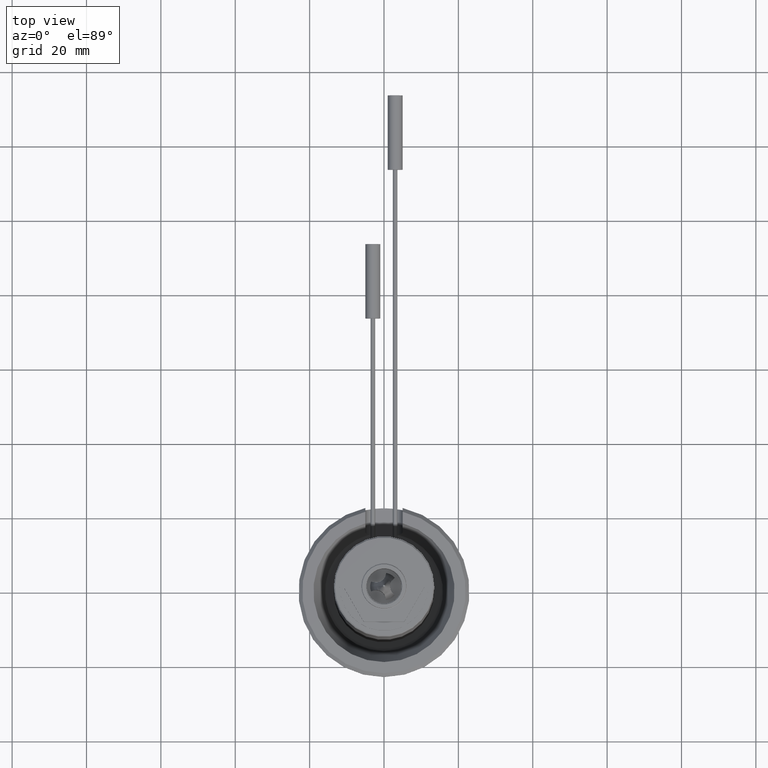
[diagram: clean part render]
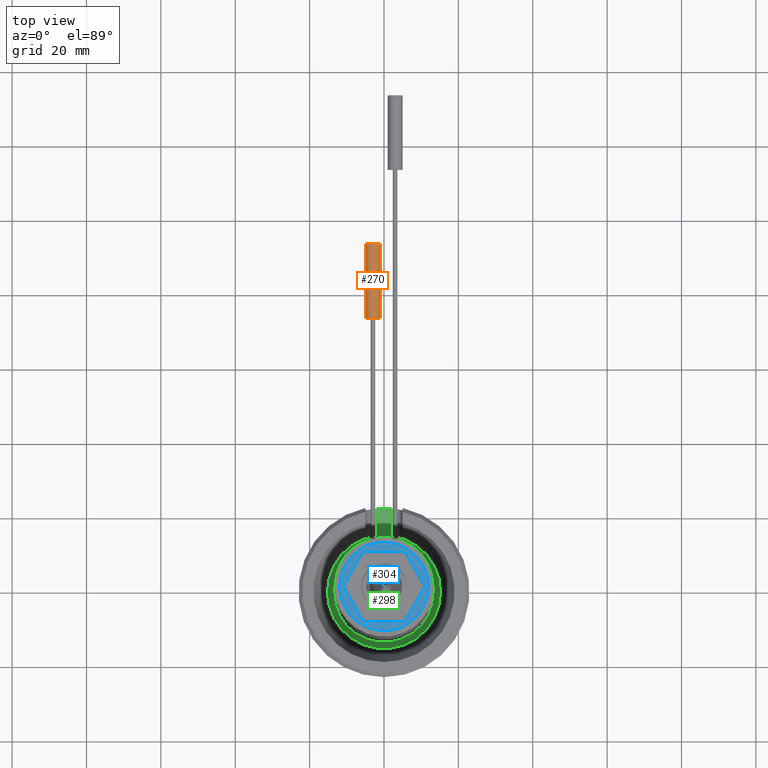
[diagram: same view with three faces highlighted in distinct colors, each labeled with its STEP entity id]
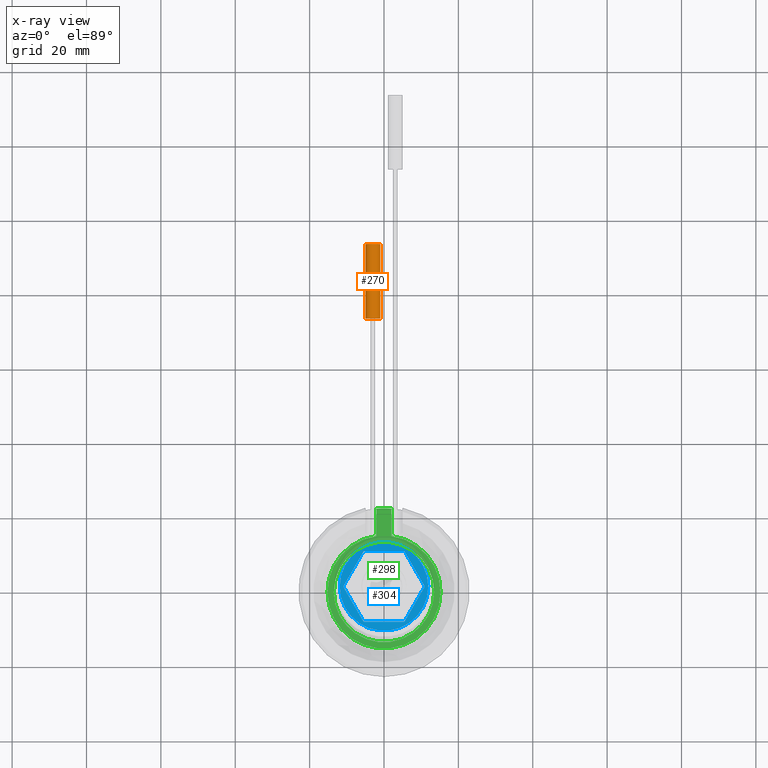
[diagram: x-ray of the same camera — body ghosted, the three highlighted faces saturated]
A machine part, top view with three faces highlighted in distinct colors.
The next image is the same camera in x-ray (body ghosted, the three faces saturated) — at least one of them is partly hidden behind the body in this view.
Their STEP definitions:

[orange] entity #270 — the highlighted cylindrical surface (bore or boss wall) has radius 2 mm, axis along (0, -1, 0).
#270=ADVANCED_FACE('',(#367,#368),#343,.T.);
#343=CYLINDRICAL_SURFACE('',#1116,2.);
#367=FACE_BOUND('',#431,.T.);
#368=FACE_BOUND('',#432,.T.);
#431=EDGE_LOOP('',(#538));
#432=EDGE_LOOP('',(#539));
#538=ORIENTED_EDGE('',*,*,#896,.F.);
#539=ORIENTED_EDGE('',*,*,#897,.T.);
#798=VERTEX_POINT('',#1588);
#799=VERTEX_POINT('',#1590);
#896=EDGE_CURVE('',#798,#798,#1027,.T.);
#897=EDGE_CURVE('',#799,#799,#1028,.T.);
#1027=CIRCLE('',#1114,2.);
#1028=CIRCLE('',#1115,2.);
#1114=AXIS2_PLACEMENT_3D('',#1587,#1262,#1263);
#1115=AXIS2_PLACEMENT_3D('',#1589,#1264,#1265);
#1116=AXIS2_PLACEMENT_3D('',#1591,#1266,#1267);
#1262=DIRECTION('',(0.,1.,0.));
#1263=DIRECTION('',(1.,0.,0.));
#1264=DIRECTION('',(0.,1.,0.));
#1265=DIRECTION('',(1.,0.,0.));
#1266=DIRECTION('',(0.,-1.,0.));
#1267=DIRECTION('',(0.,0.,-1.));
#1587=CARTESIAN_POINT('',(-3.,93.5,18.5));
#1588=CARTESIAN_POINT('',(-0.999999999999999,93.5,18.5));
#1589=CARTESIAN_POINT('',(-3.,73.5,18.5));
#1590=CARTESIAN_POINT('',(-0.999999999999999,73.5,18.5));
#1591=CARTESIAN_POINT('',(-3.,93.5,18.5));

[blue] entity #304 — the highlighted planar face has unit normal (0, 0, -1).
#63=LINE('',#1932,#107);
#64=LINE('',#1933,#108);
#65=LINE('',#1934,#109);
#66=LINE('',#1935,#110);
#67=LINE('',#1936,#111);
#68=LINE('',#1937,#112);
#107=VECTOR('',#1470,1.);
#108=VECTOR('',#1471,1.);
#109=VECTOR('',#1472,1.);
#110=VECTOR('',#1473,1.);
#111=VECTOR('',#1474,1.);
#112=VECTOR('',#1475,1.);
#203=PLANE('',#1203);
#304=ADVANCED_FACE('',(#405,#406),#203,.F.);
#405=FACE_BOUND('',#485,.T.);
#406=FACE_BOUND('',#486,.T.);
#485=EDGE_LOOP('',(#662,#663,#664,#665,#666,#667,#668,#669,#670,#671,#672,
#673));
#486=EDGE_LOOP('',(#674));
#662=ORIENTED_EDGE('',*,*,#928,.F.);
#663=ORIENTED_EDGE('',*,*,#993,.T.);
#664=ORIENTED_EDGE('',*,*,#936,.F.);
#665=ORIENTED_EDGE('',*,*,#994,.T.);
#666=ORIENTED_EDGE('',*,*,#933,.F.);
#667=ORIENTED_EDGE('',*,*,#995,.T.);
#668=ORIENTED_EDGE('',*,*,#930,.F.);
#669=ORIENTED_EDGE('',*,*,#996,.T.);
#670=ORIENTED_EDGE('',*,*,#924,.F.);
#671=ORIENTED_EDGE('',*,*,#997,.T.);
#672=ORIENTED_EDGE('',*,*,#922,.F.);
#673=ORIENTED_EDGE('',*,*,#998,.T.);
#674=ORIENTED_EDGE('',*,*,#999,.T.);
#822=VERTEX_POINT('',#1695);
#823=VERTEX_POINT('',#1697);
#824=VERTEX_POINT('',#1701);
#825=VERTEX_POINT('',#1703);
#826=VERTEX_POINT('',#1707);
#827=VERTEX_POINT('',#1709);
#828=VERTEX_POINT('',#1713);
#829=VERTEX_POINT('',#1715);
#830=VERTEX_POINT('',#1719);
#831=VERTEX_POINT('',#1721);
#832=VERTEX_POINT('',#1725);
#833=VERTEX_POINT('',#1727);
#880=VERTEX_POINT('',#1939);
#922=EDGE_CURVE('',#823,#822,#1042,.T.);
#924=EDGE_CURVE('',#824,#825,#1043,.T.);
#928=EDGE_CURVE('',#827,#826,#1044,.T.);
#930=EDGE_CURVE('',#828,#829,#1045,.T.);
#933=EDGE_CURVE('',#830,#831,#1046,.T.);
#936=EDGE_CURVE('',#832,#833,#1047,.T.);
#993=EDGE_CURVE('',#827,#833,#63,.T.);
#994=EDGE_CURVE('',#832,#831,#64,.T.);
#995=EDGE_CURVE('',#830,#829,#65,.T.);
#996=EDGE_CURVE('',#828,#825,#66,.T.);
#997=EDGE_CURVE('',#824,#822,#67,.T.);
#998=EDGE_CURVE('',#823,#826,#68,.T.);
#999=EDGE_CURVE('',#880,#880,#1081,.T.);
#1042=CIRCLE('',#1137,10.9);
#1043=CIRCLE('',#1139,10.9);
#1044=CIRCLE('',#1141,10.9);
#1045=CIRCLE('',#1143,10.9);
#1046=CIRCLE('',#1145,10.9);
#1047=CIRCLE('',#1147,10.9);
#1081=CIRCLE('',#1202,11.9);
#1137=AXIS2_PLACEMENT_3D('',#1698,#1316,#1317);
#1139=AXIS2_PLACEMENT_3D('',#1702,#1321,#1322);
#1141=AXIS2_PLACEMENT_3D('',#1710,#1328,#1329);
#1143=AXIS2_PLACEMENT_3D('',#1714,#1333,#1334);
#1145=AXIS2_PLACEMENT_3D('',#1720,#1339,#1340);
#1147=AXIS2_PLACEMENT_3D('',#1726,#1345,#1346);
#1202=AXIS2_PLACEMENT_3D('',#1938,#1476,#1477);
#1203=AXIS2_PLACEMENT_3D('',#1940,#1478,#1479);
#1316=DIRECTION('',(0.,0.,1.));
#1317=DIRECTION('',(1.,0.,0.));
#1321=DIRECTION('',(0.,0.,1.));
#1322=DIRECTION('',(1.,0.,0.));
#1328=DIRECTION('',(0.,0.,1.));
#1329=DIRECTION('',(1.,0.,0.));
#1333=DIRECTION('',(0.,0.,1.));
#1334=DIRECTION('',(1.,0.,0.));
#1339=DIRECTION('',(0.,0.,1.));
#1340=DIRECTION('',(1.,0.,0.));
#1345=DIRECTION('',(0.,0.,1.));
#1346=DIRECTION('',(1.,0.,0.));
#1470=DIRECTION('',(1.,0.,0.));
#1471=DIRECTION('',(0.500000000000001,-0.866025403784438,0.));
#1472=DIRECTION('',(-0.499999999999999,-0.866025403784439,0.));
#1473=DIRECTION('',(-1.,-2.27221380597914E-15,0.));
#1474=DIRECTION('',(-0.500000000000003,0.866025403784437,0.));
#1475=DIRECTION('',(0.499999999999996,0.866025403784441,0.));
#1476=DIRECTION('',(0.,0.,1.));
#1477=DIRECTION('',(1.,0.,0.));
#1478=DIRECTION('',(0.,0.,-1.));
#1479=DIRECTION('',(-1.,0.,0.));
#1695=CARTESIAN_POINT('',(-10.8993191791296,-0.121825413837578,100.5));
#1697=CARTESIAN_POINT('',(-10.8993191791296,0.121825413837501,100.5));
#1698=CARTESIAN_POINT('',(0.,0.,100.5));
#1701=CARTESIAN_POINT('',(-5.55516349277467,-9.37817458616247,100.5));
#1702=CARTESIAN_POINT('',(0.,0.,100.5));
#1703=CARTESIAN_POINT('',(-5.34415568635493,-9.50000000000001,100.5));
#1707=CARTESIAN_POINT('',(-5.55516349277473,9.37817458616243,100.5));
#1709=CARTESIAN_POINT('',(-5.34415568635495,9.5,100.5));
#1710=CARTESIAN_POINT('',(0.,0.,100.5));
#1713=CARTESIAN_POINT('',(5.34415568635498,-9.49999999999999,100.5));
#1714=CARTESIAN_POINT('',(0.,0.,100.5));
#1715=CARTESIAN_POINT('',(5.5551634927747,-9.37817458616245,100.5));
#1719=CARTESIAN_POINT('',(10.8993191791296,-0.121825413837535,100.5));
#1720=CARTESIAN_POINT('',(0.,0.,100.5));
#1721=CARTESIAN_POINT('',(10.8993191791296,0.121825413837552,100.5));
#1725=CARTESIAN_POINT('',(5.55516349277469,9.37817458616246,100.5));
#1726=CARTESIAN_POINT('',(0.,0.,100.5));
#1727=CARTESIAN_POINT('',(5.34415568635496,9.5,100.5));
#1932=CARTESIAN_POINT('',(-5.34415568635496,9.5,100.5));
#1933=CARTESIAN_POINT('',(5.55516349277468,9.37817458616246,100.5));
#1934=CARTESIAN_POINT('',(10.8993191791296,-0.121825413837527,100.5));
#1935=CARTESIAN_POINT('',(5.34415568635498,-9.49999999999999,100.5));
#1936=CARTESIAN_POINT('',(-5.55516349277466,-9.37817458616247,100.5));
#1937=CARTESIAN_POINT('',(-10.8993191791296,0.121825413837499,100.5));
#1938=CARTESIAN_POINT('',(0.,0.,100.5));
#1939=CARTESIAN_POINT('',(11.9,0.,100.5));
#1940=CARTESIAN_POINT('',(-11.9,0.,100.5));

[green] entity #298 — the highlighted planar face has unit normal (0, 0, 1).
#61=LINE('',#1903,#105);
#62=LINE('',#1904,#106);
#105=VECTOR('',#1432,1.);
#106=VECTOR('',#1433,1.);
#200=PLANE('',#1185);
#298=ADVANCED_FACE('',(#393,#394),#200,.T.);
#393=FACE_BOUND('',#473,.T.);
#394=FACE_BOUND('',#474,.T.);
#473=EDGE_LOOP('',(#642,#643,#644,#645));
#474=EDGE_LOOP('',(#646));
#642=ORIENTED_EDGE('',*,*,#949,.F.);
#643=ORIENTED_EDGE('',*,*,#979,.T.);
#644=ORIENTED_EDGE('',*,*,#959,.F.);
#645=ORIENTED_EDGE('',*,*,#980,.T.);
#646=ORIENTED_EDGE('',*,*,#981,.F.);
#845=VERTEX_POINT('',#1767);
#846=VERTEX_POINT('',#1769);
#853=VERTEX_POINT('',#1804);
#854=VERTEX_POINT('',#1805);
#871=VERTEX_POINT('',#1906);
#949=EDGE_CURVE('',#845,#846,#1053,.T.);
#959=EDGE_CURVE('',#853,#854,#1057,.T.);
#979=EDGE_CURVE('',#845,#854,#61,.T.);
#980=EDGE_CURVE('',#853,#846,#62,.T.);
#981=EDGE_CURVE('',#871,#871,#1069,.T.);
#1053=CIRCLE('',#1154,22.5);
#1057=CIRCLE('',#1161,15.199833762822);
#1069=CIRCLE('',#1184,13.5000000000001);
#1154=AXIS2_PLACEMENT_3D('',#1768,#1365,#1366);
#1161=AXIS2_PLACEMENT_3D('',#1803,#1384,#1385);
#1184=AXIS2_PLACEMENT_3D('',#1905,#1434,#1435);
#1185=AXIS2_PLACEMENT_3D('',#1907,#1436,#1437);
#1365=DIRECTION('',(0.,0.,-1.));
#1366=DIRECTION('',(1.,0.,0.));
#1384=DIRECTION('',(0.,0.,-1.));
#1385=DIRECTION('',(1.,0.,0.));
#1432=DIRECTION('',(0.,-1.,0.));
#1433=DIRECTION('',(0.,1.,0.));
#1434=DIRECTION('',(0.,0.,1.));
#1435=DIRECTION('',(1.,0.,0.));
#1436=DIRECTION('',(0.,0.,1.));
#1437=DIRECTION('',(1.,0.,0.));
#1767=CARTESIAN_POINT('',(-1.99999999999501,22.4109348310155,15.5));
#1768=CARTESIAN_POINT('',(0.,0.,15.5));
#1769=CARTESIAN_POINT('',(1.99999999999501,22.4109348310155,15.5));
#1803=CARTESIAN_POINT('',(0.,0.,15.5));
#1804=CARTESIAN_POINT('',(1.99999999999501,15.0676788662834,15.5));
#1805=CARTESIAN_POINT('',(-1.99999999999501,15.0676788662834,15.5));
#1903=CARTESIAN_POINT('',(-1.99999999999501,14.3539174589195,15.5));
#1904=CARTESIAN_POINT('',(1.99999999999501,21.9374109684815,15.5));
#1905=CARTESIAN_POINT('',(0.,0.,15.5));
#1906=CARTESIAN_POINT('',(13.5000000000001,0.,15.5));
#1907=CARTESIAN_POINT('',(13.5000000000001,0.,15.5));